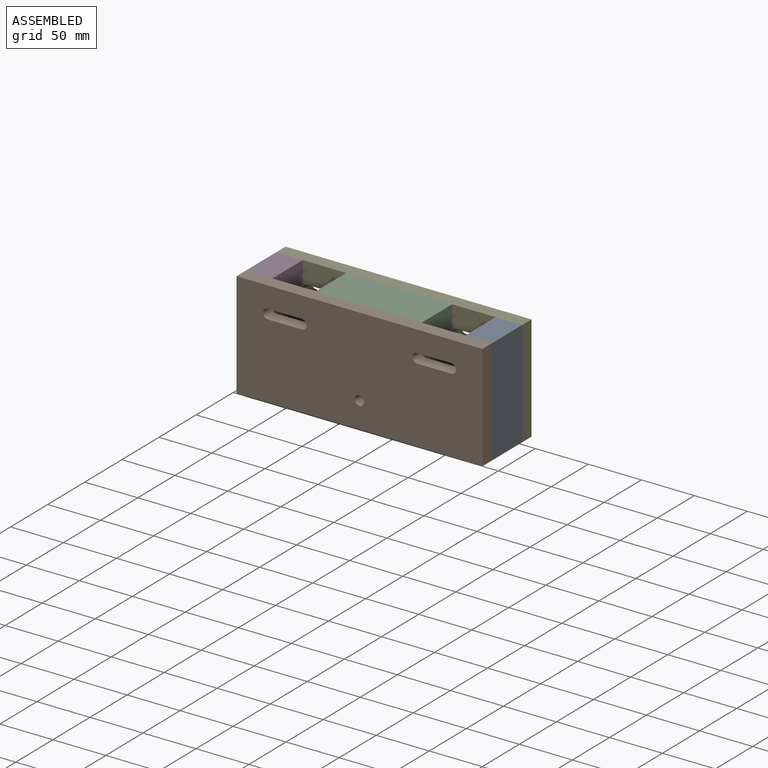
[diagram: assembled view]
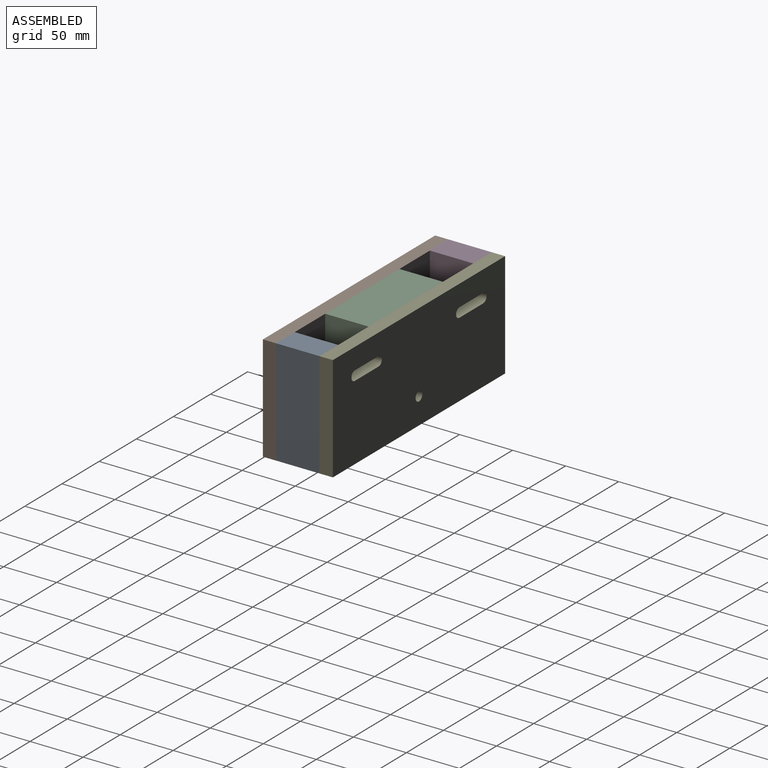
[diagram: assembled view, second angle]
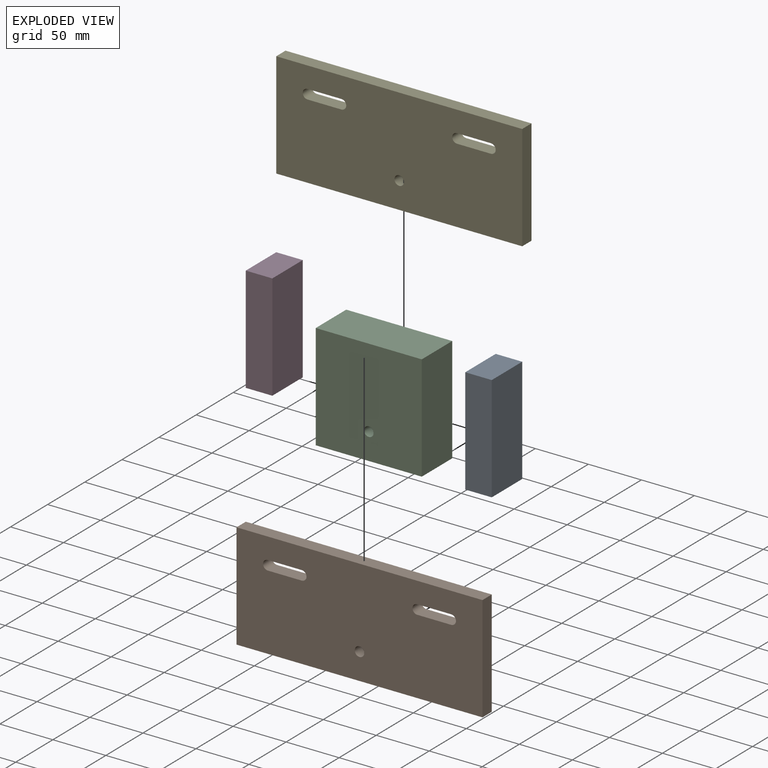
[diagram: exploded view]
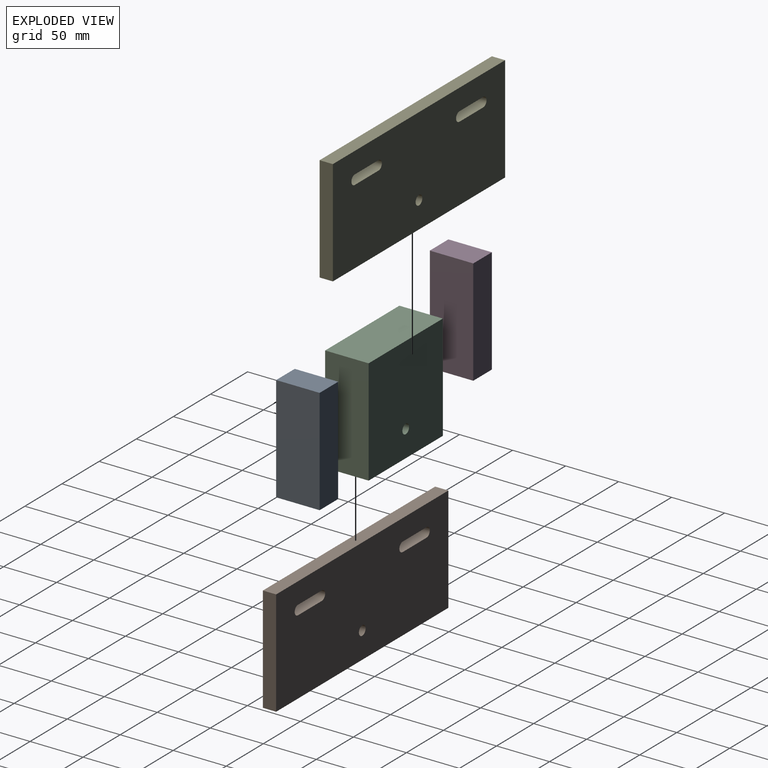
[diagram: exploded view, second angle]
ASSEMBLY  parts=5 mates=4
PART A: 6 faces, bbox 25x41x100 mm
  f0: plane 100x41mm, normal (-1,0,0), area 4100mm2, adj f1,f3,f4,f5
  f1: plane 41x25mm, normal (0,0,-1), area 1025mm2, adj f0,f2,f4,f5
  f2: plane 100x41mm, normal (1,0,0), area 4100mm2, adj f1,f3,f4,f5
  f3: plane 41x25mm, normal (0,0,1), area 1025mm2, adj f0,f2,f4,f5
  f4: plane 100x25mm, normal (0,-1,0), area 2500mm2, adj f0,f1,f2,f3
  f5: plane 100x25mm, normal (0,1,0), area 2500mm2, adj f0,f1,f2,f3
PART B: 15 faces, bbox 232x12.5x100 mm
  f0: plane 232x100mm, normal (0,-1,0), area 22433.1mm2, adj f2,f3,f4,f5,f6,f7,f8,f9
  f1: plane 232x100mm, normal (0,1,0), area 22433.1mm2, adj f2,f3,f4,f5,f6,f7,f8,f9
  f2: plane 100x12.5mm, normal (-1,0,0), area 1250mm2, adj f0,f1,f3,f5
  f3: plane 232x12.5mm, normal (0,0,-1), area 2900mm2, adj f0,f1,f2,f4
  f4: plane 100x12.5mm, normal (1,0,0), area 1250mm2, adj f0,f1,f3,f5
  f5: plane 232x12.5mm, normal (0,0,1), area 2900mm2, adj f0,f1,f2,f4
  f6: cylinder r=4.5mm len=12.5mm, axis (0,-1,0), area 176.7mm2, adj f0,f1,f7,f9
  f7: plane 32x12.5mm, normal (0,0,-1), area 400mm2, adj f0,f1,f6,f8
  f8: cylinder r=4.5mm len=12.5mm, axis (0,-1,0), area 176.7mm2, adj f0,f1,f7,f9
  f9: plane 32x12.5mm, normal (0,0,1), area 400mm2, adj f0,f1,f6,f8
  f10: plane 32x12.5mm, normal (0,0,1), area 400mm2, adj f0,f1,f11,f13
  f11: cylinder r=4.5mm len=12.5mm, axis (0,-1,0), area 176.7mm2, adj f0,f1,f10,f12
  f12: plane 32x12.5mm, normal (0,0,-1), area 400mm2, adj f0,f1,f11,f13
  f13: cylinder r=4.5mm len=12.5mm, axis (0,-1,0), area 176.7mm2, adj f0,f1,f10,f12
  f14: cylinder r=4.5mm len=12.5mm, axis (0,1,0), area 353.4mm2, adj f0,f1
PART C: 7 faces, bbox 100x41x100 mm
  f0: plane 100x41mm, normal (-1,0,0), area 4100mm2, adj f1,f3,f4,f5
  f1: plane 100x41mm, normal (0,0,-1), area 4100mm2, adj f0,f2,f4,f5
  f2: plane 100x41mm, normal (1,0,0), area 4100mm2, adj f1,f3,f4,f5
  f3: plane 100x41mm, normal (0,0,1), area 4100mm2, adj f0,f2,f4,f5
  f4: plane 100x100mm, normal (0,-1,0), area 9936.4mm2, adj f0,f1,f2,f3,f6
  f5: plane 100x100mm, normal (0,1,0), area 9936.4mm2, adj f0,f1,f2,f3,f6
  f6: cylinder r=4.5mm len=41mm, axis (0,1,0), area 1159.2mm2, adj f4,f5
PART D: 6 faces, bbox 25x41x100 mm
  f0: plane 100x41mm, normal (-1,0,0), area 4100mm2, adj f1,f3,f4,f5
  f1: plane 41x25mm, normal (0,0,-1), area 1025mm2, adj f0,f2,f4,f5
  f2: plane 100x41mm, normal (1,0,0), area 4100mm2, adj f1,f3,f4,f5
  f3: plane 41x25mm, normal (0,0,1), area 1025mm2, adj f0,f2,f4,f5
  f4: plane 100x25mm, normal (0,-1,0), area 2500mm2, adj f0,f1,f2,f3
  f5: plane 100x25mm, normal (0,1,0), area 2500mm2, adj f0,f1,f2,f3
PART E: 15 faces, bbox 232x12.5x100 mm
  f0: plane 232x100mm, normal (0,1,0), area 22433.1mm2, adj f2,f3,f4,f5,f6,f7,f8,f9
  f1: plane 232x100mm, normal (0,-1,0), area 22433.1mm2, adj f2,f3,f4,f5,f6,f7,f8,f9
  f2: plane 100x12.5mm, normal (-1,0,0), area 1250mm2, adj f0,f1,f3,f5
  f3: plane 232x12.5mm, normal (0,0,-1), area 2900mm2, adj f0,f1,f2,f4
  f4: plane 100x12.5mm, normal (1,0,0), area 1250mm2, adj f0,f1,f3,f5
  f5: plane 232x12.5mm, normal (0,0,1), area 2900mm2, adj f0,f1,f2,f4
  f6: cylinder r=4.5mm len=12.5mm, axis (0,1,0), area 176.7mm2, adj f0,f1,f7,f9
  f7: plane 32x12.5mm, normal (0,0,-1), area 400mm2, adj f0,f1,f6,f8
  f8: cylinder r=4.5mm len=12.5mm, axis (0,1,0), area 176.7mm2, adj f0,f1,f7,f9
  f9: plane 32x12.5mm, normal (0,0,1), area 400mm2, adj f0,f1,f6,f8
  f10: plane 32x12.5mm, normal (0,0,1), area 400mm2, adj f0,f1,f11,f13
  f11: cylinder r=4.5mm len=12.5mm, axis (0,1,0), area 176.7mm2, adj f0,f1,f10,f12
  f12: plane 32x12.5mm, normal (0,0,-1), area 400mm2, adj f0,f1,f11,f13
  f13: cylinder r=4.5mm len=12.5mm, axis (0,1,0), area 176.7mm2, adj f0,f1,f10,f12
  f14: cylinder r=4.5mm len=12.5mm, axis (0,-1,0), area 353.4mm2, adj f0,f1
PLACE A at identity
PLACE B at identity
PLACE C at identity fixed
PLACE D at identity
PLACE E at identity
MATE fastened B.f5 <-> C.f3  axis (0,0,1) through (87.36,-20.5,1016.27)mm
MATE fastened A.f1 <-> B.f3  axis (0,0,1) through (203.36,-20.5,916.27)mm
MATE fastened B.f3 <-> D.f1  axis (0,0,1) through (-28.64,-20.5,916.27)mm
MATE fastened A.f1 <-> E.f3  axis (0,0,1) through (203.36,20.5,916.27)mm
